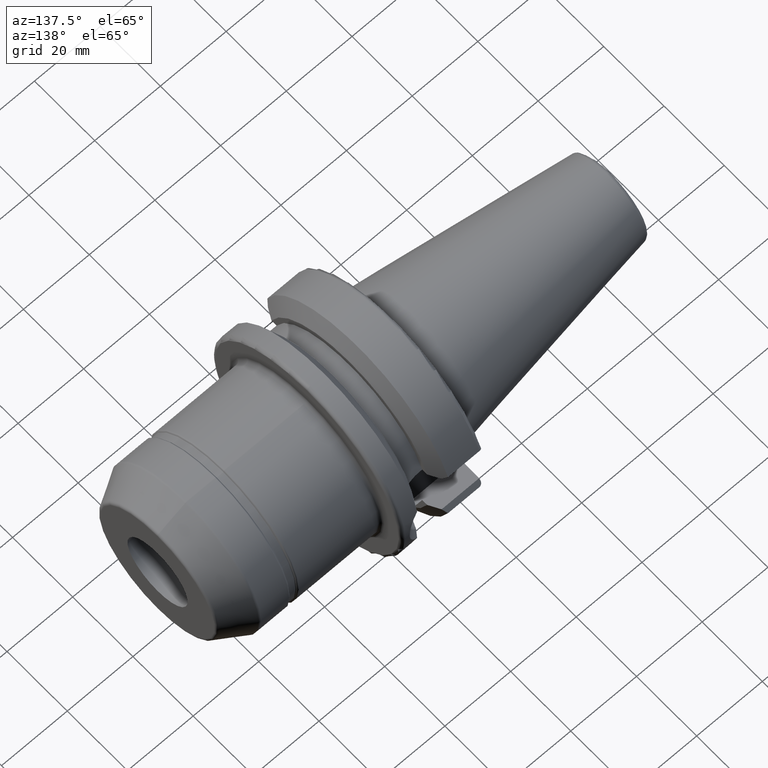
[diagram: clean part render]
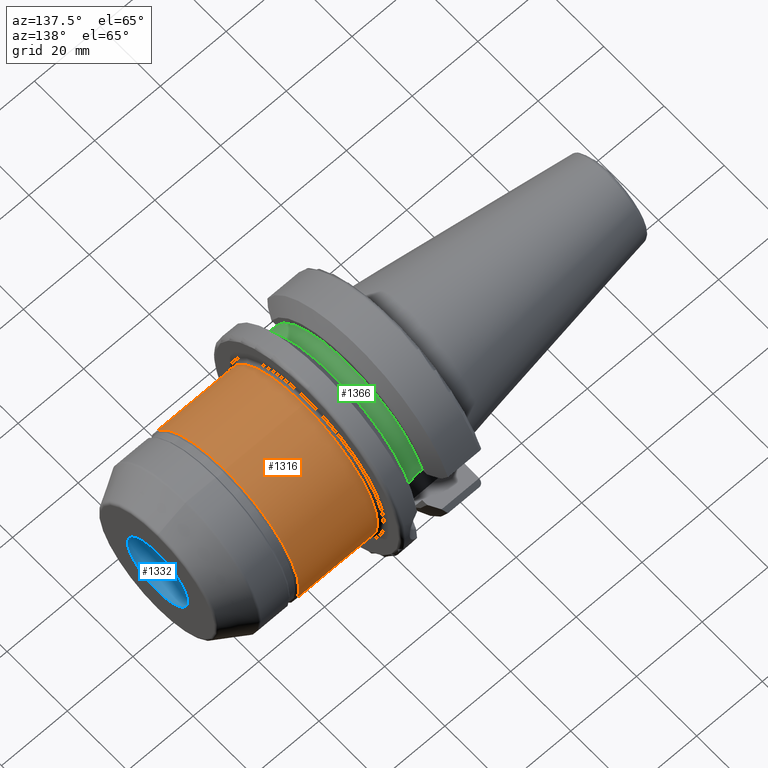
[diagram: same view with three faces highlighted in distinct colors, each labeled with its STEP entity id]
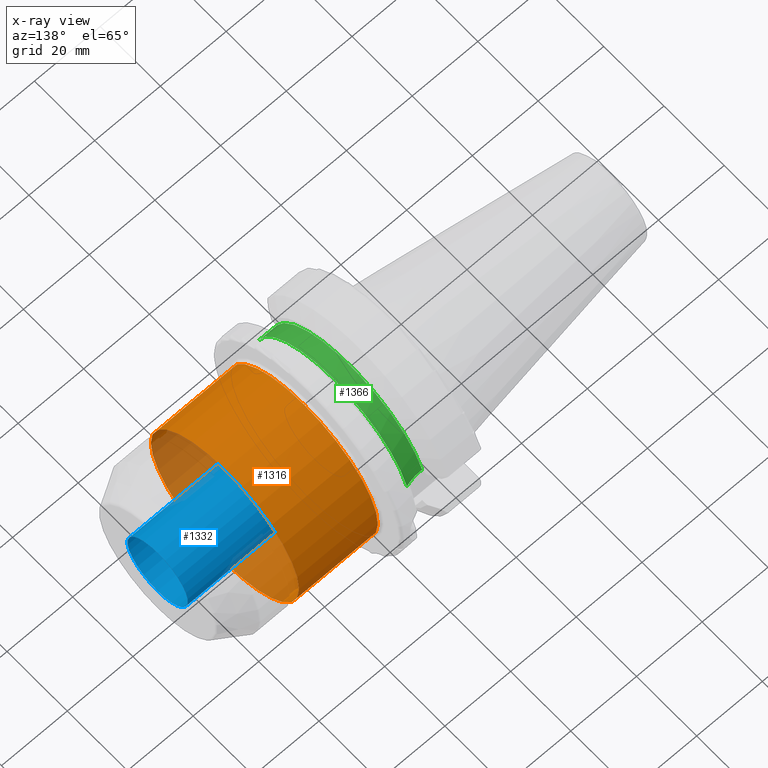
[diagram: x-ray of the same camera — body ghosted, the three highlighted faces saturated]
A machine part, auxiliary view with three faces highlighted in distinct colors.
The next image is the same camera in x-ray (body ghosted, the three faces saturated) — at least one of them is partly hidden behind the body in this view.
Their STEP definitions:

[orange] entity #1316 — the highlighted cylindrical surface (bore or boss wall) has radius 24.625 mm, axis along (1, 0, 0).
#113=FACE_OUTER_BOUND('',#187,.T.);
#187=EDGE_LOOP('',(#888,#889,#890,#891,#892,#893));
#266=LINE('',#2066,#332);
#332=VECTOR('',#1633,24.625);
#402=CIRCLE('',#1417,24.625);
#403=CIRCLE('',#1418,24.625);
#406=CIRCLE('',#1422,24.625);
#407=CIRCLE('',#1423,24.625);
#516=VERTEX_POINT('',#2054);
#517=VERTEX_POINT('',#2055);
#519=VERTEX_POINT('',#2062);
#520=VERTEX_POINT('',#2063);
#664=EDGE_CURVE('',#516,#517,#402,.T.);
#665=EDGE_CURVE('',#517,#516,#403,.T.);
#668=EDGE_CURVE('',#519,#520,#406,.T.);
#669=EDGE_CURVE('',#520,#519,#407,.T.);
#670=EDGE_CURVE('',#520,#517,#266,.T.);
#888=ORIENTED_EDGE('',*,*,#668,.F.);
#889=ORIENTED_EDGE('',*,*,#669,.F.);
#890=ORIENTED_EDGE('',*,*,#670,.T.);
#891=ORIENTED_EDGE('',*,*,#664,.F.);
#892=ORIENTED_EDGE('',*,*,#665,.F.);
#893=ORIENTED_EDGE('',*,*,#670,.F.);
#1295=CYLINDRICAL_SURFACE('',#1421,24.625);
#1316=ADVANCED_FACE('',(#113),#1295,.T.);
#1417=AXIS2_PLACEMENT_3D('',#2056,#1619,#1620);
#1418=AXIS2_PLACEMENT_3D('',#2057,#1621,#1622);
#1421=AXIS2_PLACEMENT_3D('',#2061,#1627,#1628);
#1422=AXIS2_PLACEMENT_3D('',#2064,#1629,#1630);
#1423=AXIS2_PLACEMENT_3D('',#2065,#1631,#1632);
#1619=DIRECTION('center_axis',(-1.,0.,0.));
#1620=DIRECTION('ref_axis',(0.,-1.22464679914735E-16,1.));
#1621=DIRECTION('center_axis',(-1.,0.,0.));
#1622=DIRECTION('ref_axis',(0.,-1.22464679914735E-16,1.));
#1627=DIRECTION('center_axis',(1.,0.,0.));
#1628=DIRECTION('ref_axis',(0.,0.,-1.));
#1629=DIRECTION('center_axis',(1.,0.,0.));
#1630=DIRECTION('ref_axis',(0.,1.22464679914735E-16,1.));
#1631=DIRECTION('center_axis',(1.,0.,0.));
#1632=DIRECTION('ref_axis',(0.,1.22464679914735E-16,1.));
#1633=DIRECTION('',(-1.,0.,0.));
#2054=CARTESIAN_POINT('',(28.,0.,-24.625));
#2055=CARTESIAN_POINT('',(28.,-3.01569274290036E-15,24.625));
#2056=CARTESIAN_POINT('Origin',(28.,0.,0.));
#2057=CARTESIAN_POINT('Origin',(28.,0.,0.));
#2061=CARTESIAN_POINT('Origin',(39.6056624327026,0.,0.));
#2062=CARTESIAN_POINT('',(51.9803847577293,0.,-24.625));
#2063=CARTESIAN_POINT('',(51.9803847577293,-3.01569274290036E-15,24.625));
#2064=CARTESIAN_POINT('Origin',(51.9803847577293,0.,0.));
#2065=CARTESIAN_POINT('Origin',(51.9803847577293,0.,0.));
#2066=CARTESIAN_POINT('',(39.6056624327026,-3.01569274290036E-15,24.625));

[blue] entity #1332 — the highlighted cylindrical surface (bore or boss wall) has radius 10 mm, axis along (-1, 0, 0).
#129=FACE_OUTER_BOUND('',#206,.T.);
#206=EDGE_LOOP('',(#975,#976,#977,#978,#979,#980));
#272=LINE('',#2154,#338);
#338=VECTOR('',#1743,10.);
#417=CIRCLE('',#1437,10.);
#418=CIRCLE('',#1438,10.);
#444=CIRCLE('',#1476,10.);
#445=CIRCLE('',#1477,10.);
#529=VERTEX_POINT('',#2089);
#530=VERTEX_POINT('',#2090);
#550=VERTEX_POINT('',#2153);
#551=VERTEX_POINT('',#2155);
#681=EDGE_CURVE('',#529,#530,#417,.T.);
#682=EDGE_CURVE('',#530,#529,#418,.T.);
#712=EDGE_CURVE('',#530,#550,#272,.T.);
#713=EDGE_CURVE('',#550,#551,#444,.T.);
#714=EDGE_CURVE('',#551,#550,#445,.T.);
#975=ORIENTED_EDGE('',*,*,#681,.F.);
#976=ORIENTED_EDGE('',*,*,#682,.F.);
#977=ORIENTED_EDGE('',*,*,#712,.T.);
#978=ORIENTED_EDGE('',*,*,#713,.T.);
#979=ORIENTED_EDGE('',*,*,#714,.T.);
#980=ORIENTED_EDGE('',*,*,#712,.F.);
#1298=CYLINDRICAL_SURFACE('',#1475,10.);
#1332=ADVANCED_FACE('',(#129),#1298,.F.);
#1437=AXIS2_PLACEMENT_3D('',#2091,#1661,#1662);
#1438=AXIS2_PLACEMENT_3D('',#2092,#1663,#1664);
#1475=AXIS2_PLACEMENT_3D('',#2152,#1741,#1742);
#1476=AXIS2_PLACEMENT_3D('',#2156,#1744,#1745);
#1477=AXIS2_PLACEMENT_3D('',#2157,#1746,#1747);
#1661=DIRECTION('center_axis',(-1.,0.,0.));
#1662=DIRECTION('ref_axis',(0.,0.,-1.));
#1663=DIRECTION('center_axis',(-1.,0.,0.));
#1664=DIRECTION('ref_axis',(0.,0.,-1.));
#1741=DIRECTION('center_axis',(-1.,0.,0.));
#1742=DIRECTION('ref_axis',(0.,0.,-1.));
#1743=DIRECTION('',(-1.,0.,0.));
#1744=DIRECTION('center_axis',(-1.,0.,0.));
#1745=DIRECTION('ref_axis',(0.,0.,1.));
#1746=DIRECTION('center_axis',(-1.,0.,0.));
#1747=DIRECTION('ref_axis',(0.,0.,1.));
#2089=CARTESIAN_POINT('',(72.5,0.,-10.));
#2090=CARTESIAN_POINT('',(72.5,1.22464679914735E-15,10.));
#2091=CARTESIAN_POINT('Origin',(72.5,0.,0.));
#2092=CARTESIAN_POINT('Origin',(72.5,0.,0.));
#2152=CARTESIAN_POINT('Origin',(48.5,0.,0.));
#2153=CARTESIAN_POINT('',(24.5,1.22464679914735E-15,10.));
#2154=CARTESIAN_POINT('',(48.5,1.22464679914735E-15,10.));
#2155=CARTESIAN_POINT('',(24.5,0.,-10.));
#2156=CARTESIAN_POINT('Origin',(24.5,0.,0.));
#2157=CARTESIAN_POINT('Origin',(24.5,0.,0.));

[green] entity #1366 — the highlighted cylindrical surface (partial cylindrical patch) has radius 25.5 mm, axis along (1, 0, 0).
#43=B_SPLINE_CURVE_WITH_KNOTS('',3,(#2554,#2555,#2556,#2557,#2558,#2559),
 .UNSPECIFIED.,.F.,.F.,(4,2,4),(0.,0.305559393991992,0.418764848000603),
 .UNSPECIFIED.);
#46=B_SPLINE_CURVE_WITH_KNOTS('',3,(#2620,#2621,#2622,#2623,#2624,#2625),
 .UNSPECIFIED.,.F.,.F.,(4,2,4),(-0.418764848000603,-0.305559393991992,0.),
 .UNSPECIFIED.);
#163=FACE_OUTER_BOUND('',#241,.T.);
#241=EDGE_LOOP('',(#1168,#1169,#1170,#1171,#1172,#1173));
#303=LINE('',#2530,#369);
#317=LINE('',#2626,#383);
#369=VECTOR('',#1866,10.);
#383=VECTOR('',#1922,10.);
#476=CIRCLE('',#1538,25.5);
#478=CIRCLE('',#1542,25.5);
#608=VERTEX_POINT('',#2527);
#609=VERTEX_POINT('',#2529);
#615=VERTEX_POINT('',#2552);
#625=VERTEX_POINT('',#2604);
#627=VERTEX_POINT('',#2617);
#628=VERTEX_POINT('',#2619);
#791=EDGE_CURVE('',#609,#608,#303,.T.);
#800=EDGE_CURVE('',#608,#615,#43,.T.);
#818=EDGE_CURVE('',#625,#609,#476,.T.);
#822=EDGE_CURVE('',#627,#615,#478,.T.);
#823=EDGE_CURVE('',#627,#628,#46,.T.);
#824=EDGE_CURVE('',#628,#625,#317,.T.);
#1168=ORIENTED_EDGE('',*,*,#791,.T.);
#1169=ORIENTED_EDGE('',*,*,#800,.T.);
#1170=ORIENTED_EDGE('',*,*,#822,.F.);
#1171=ORIENTED_EDGE('',*,*,#823,.T.);
#1172=ORIENTED_EDGE('',*,*,#824,.T.);
#1173=ORIENTED_EDGE('',*,*,#818,.T.);
#1307=CYLINDRICAL_SURFACE('',#1541,25.5);
#1366=ADVANCED_FACE('',(#163),#1307,.T.);
#1538=AXIS2_PLACEMENT_3D('',#2605,#1911,#1912);
#1541=AXIS2_PLACEMENT_3D('',#2616,#1918,#1919);
#1542=AXIS2_PLACEMENT_3D('',#2618,#1920,#1921);
#1866=DIRECTION('',(1.,0.,0.));
#1911=DIRECTION('center_axis',(1.,0.,0.));
#1912=DIRECTION('ref_axis',(0.,0.,-1.));
#1918=DIRECTION('center_axis',(1.,0.,0.));
#1919=DIRECTION('ref_axis',(0.,1.,0.));
#1920=DIRECTION('center_axis',(1.,0.,0.));
#1921=DIRECTION('ref_axis',(0.,0.,-1.));
#1922=DIRECTION('',(-1.,0.,0.));
#2527=CARTESIAN_POINT('',(14.95,-24.1960224003864,8.05));
#2529=CARTESIAN_POINT('',(14.1,-24.1960224003864,8.05));
#2530=CARTESIAN_POINT('',(16.6,-24.1960224003864,8.05));
#2552=CARTESIAN_POINT('',(19.1,-24.5493380766162,6.89782574439221));
#2554=CARTESIAN_POINT('Ctrl Pts',(14.95,-24.1960224003864,8.05));
#2555=CARTESIAN_POINT('Ctrl Pts',(15.9685313133066,-24.1960224003864,8.05));
#2556=CARTESIAN_POINT('Ctrl Pts',(17.0497516664971,-24.2670783971366,7.84501312719341));
#2557=CARTESIAN_POINT('Ctrl Pts',(18.4072379028184,-24.4390565244262,7.28065599998141));
#2558=CARTESIAN_POINT('Ctrl Pts',(18.7625417379862,-24.492291659194,7.10085374759973));
#2559=CARTESIAN_POINT('Ctrl Pts',(19.1,-24.5493380766162,6.89782574439221));
#2604=CARTESIAN_POINT('',(14.1,24.1960224003864,8.05));
#2605=CARTESIAN_POINT('Origin',(14.1,0.,0.));
#2616=CARTESIAN_POINT('Origin',(16.6,0.,0.));
#2617=CARTESIAN_POINT('',(19.1,24.5493380766162,6.89782574439221));
#2618=CARTESIAN_POINT('Origin',(19.1,0.,0.));
#2619=CARTESIAN_POINT('',(14.95,24.1960224003864,8.05));
#2620=CARTESIAN_POINT('Ctrl Pts',(19.1,24.5493380766162,6.89782574439221));
#2621=CARTESIAN_POINT('Ctrl Pts',(18.7625417379862,24.492291659194,7.10085374759973));
#2622=CARTESIAN_POINT('Ctrl Pts',(18.4072379028184,24.4390565244262,7.28065599998141));
#2623=CARTESIAN_POINT('Ctrl Pts',(17.0497516664971,24.2670783971366,7.84501312719341));
#2624=CARTESIAN_POINT('Ctrl Pts',(15.9685313133066,24.1960224003864,8.05));
#2625=CARTESIAN_POINT('Ctrl Pts',(14.95,24.1960224003864,8.05));
#2626=CARTESIAN_POINT('',(16.6,24.1960224003864,8.05));